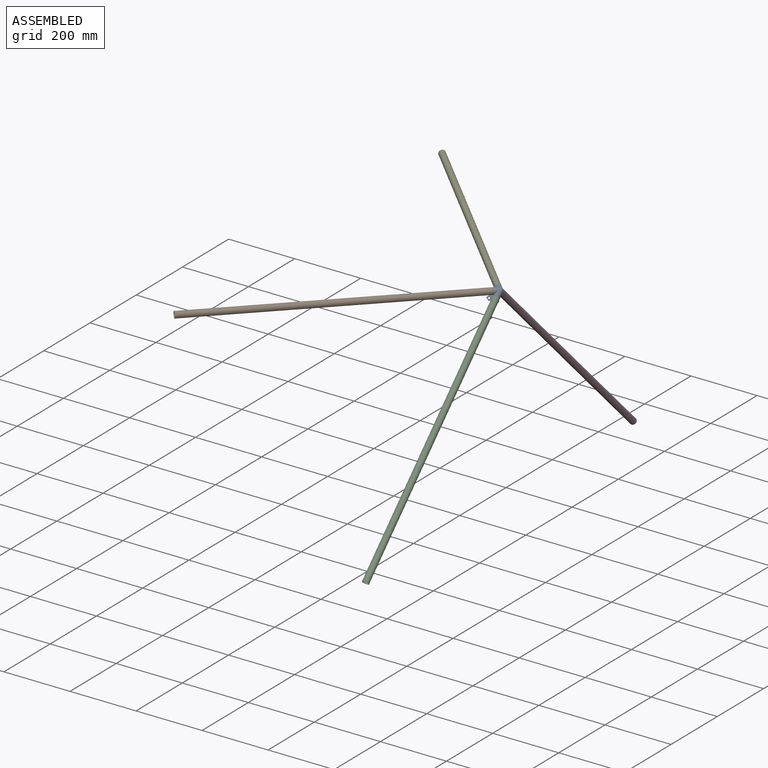
[diagram: assembled view]
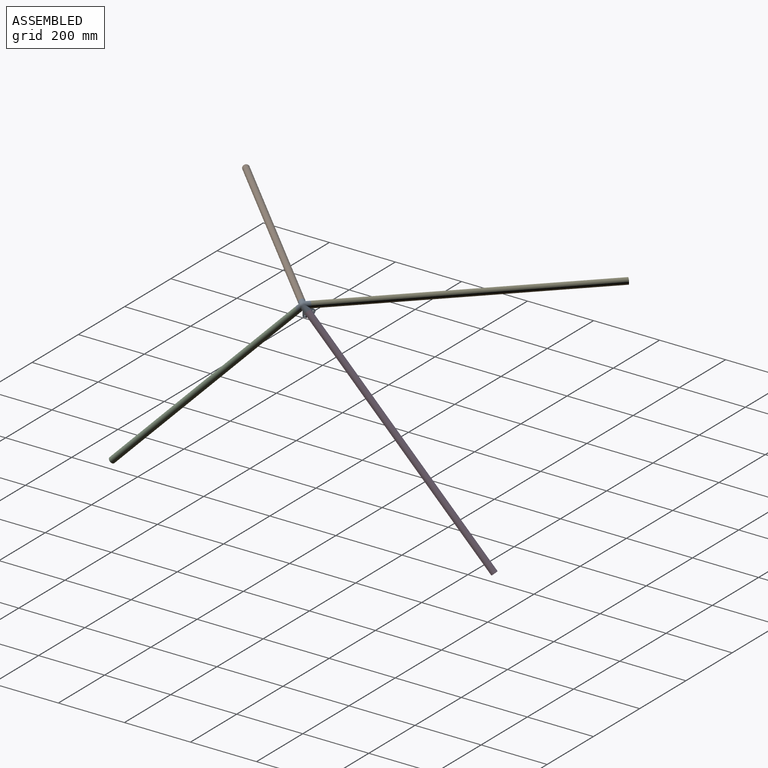
[diagram: assembled view, second angle]
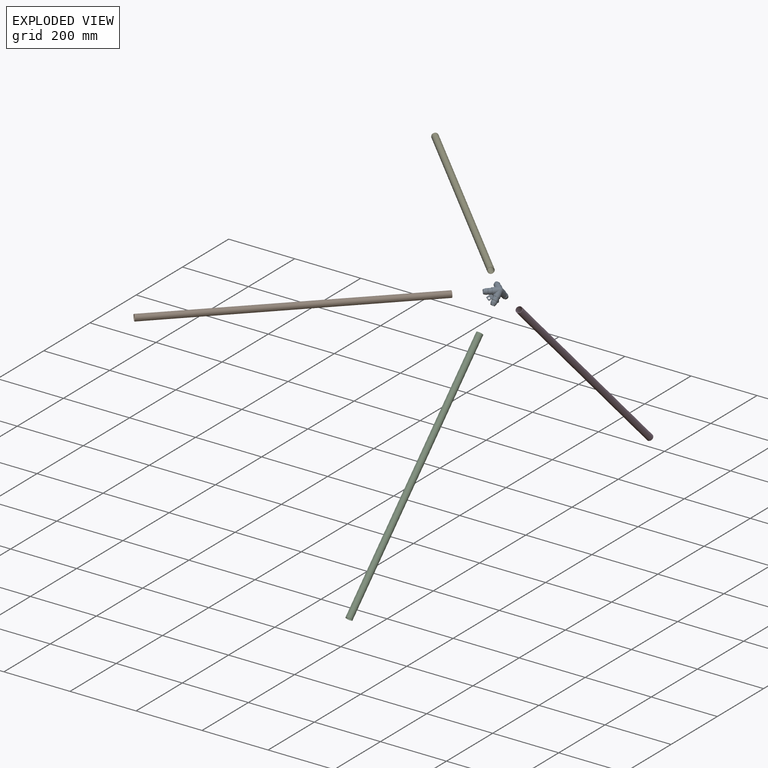
[diagram: exploded view]
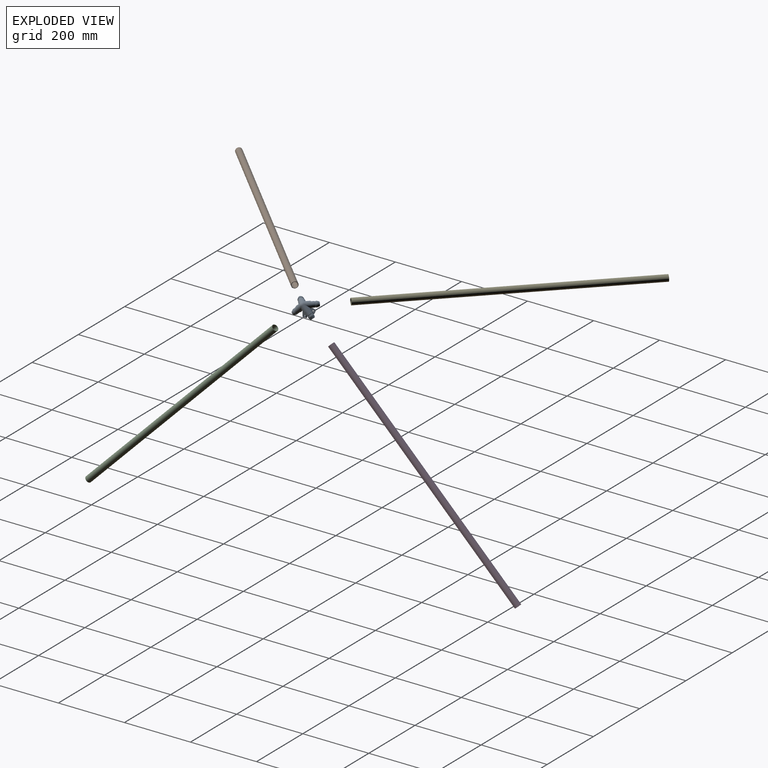
[diagram: exploded view, second angle]
ASSEMBLY  parts=5 mates=4
PART A: 211 faces, bbox 46.3x67.2x46.3 mm
  f0: bspline ~1.73x1.58mm, area 0.7mm2, adj f1,f10,f129,f181
  f1: bspline ~1.74x1.48mm, area 0.7mm2, adj f0,f2,f10,f129
  f2: bspline ~1.51x1.28mm, area 0.4mm2, adj f1,f10,f129,f179
  f3: cylinder r=1mm len=0.9mm, axis (1,0,0), area 0.6mm2, adj f28,f53,f171
  f4: plane 8.76x4.43mm, normal (0,0,1), area 11.4mm2, adj f6,f8,f27,f28,f51,f54,f165,f168
  f5: plane 0.35x0.32mm, normal (0,0,1), area 0mm2, adj f7,f27,f166,f167
  f6: plane 0.33x0.33mm, normal (0.71,-0.71,0), area 0mm2, adj f4,f51,f168
  f7: cylinder r=1mm len=0.9mm, axis (-1,0,0), area 0.6mm2, adj f5,f27,f166
  f8: plane 0.33x0.33mm, normal (0.71,0.71,0), area 0mm2, adj f4,f54,f165
  f9: cylinder r=1mm len=17.73mm, axis (1,0,0), area 26mm2, adj f13,f60,f68,f190,f191
  f10: cylinder r=1mm len=17.73mm, axis (-1,0,0), area 26.1mm2, adj f0,f1,f2,f13,f62,f66,f181,f184
  f11: cylinder r=9.53mm len=26.94mm, axis (0,-0.71,0.71), area 605.3mm2, adj f12,f20,f24,f25,f72,f96,f97,f144
  f12: cylinder r=9.53mm len=26.94mm, axis (0,0.71,0.71), area 605.3mm2, adj f11,f21,f25,f26,f81,f97,f98,f126
  f13: plane 25.3x10mm, normal (0,0,-1), area 197.9mm2, adj f9,f10,f63,f66,f67,f68,f187,f189
  f14: plane 0.62x0.62mm, normal (0,0.71,0.71), area 0.1mm2, adj f17,f23,f111
  f15: plane 25.3x10mm, normal (-1,0,0), area 197.9mm2, adj f94,f95,f100,f103,f104,f105,f185,f188
  f16: cylinder r=1mm len=1.27mm, axis (0,0,1), area 1mm2, adj f17,f59,f115,f161
  f17: plane 10.04x5.08mm, normal (1,0,0), area 13mm2, adj f14,f16,f18,f19,f22,f23,f56,f59
  f18: plane 0.62x0.62mm, normal (0,-0.71,0.71), area 0.1mm2, adj f17,f22,f114
  f19: cylinder r=1mm len=1.27mm, axis (0,0,-1), area 1mm2, adj f17,f56,f112,f152
  f20: plane 18.6x2mm, normal (0,1,0), area 35.7mm2, adj f11,f94,f96,f101,f183
  f21: plane 18.6x2mm, normal (0,-1,0), area 35.7mm2, adj f12,f95,f98,f102,f180
  f22: cylinder r=9.53mm len=19.68mm, axis (0.71,0.71,0), area 207.7mm2, adj f17,f18,f23,f59,f109,f113,f114
  f23: cylinder r=9.53mm len=19.68mm, axis (0.71,-0.71,0), area 207.7mm2, adj f14,f17,f22,f56,f109,f110,f111
  f24: cylinder r=9.53mm len=26.94mm, axis (0.71,-0.71,0), area 604.3mm2, adj f11,f25,f26,f29,f55,f57,f60,f144
  f25: sphere r=9.53mm, area 97.9mm2, adj f11,f12,f24,f26
  f26: cylinder r=9.53mm len=26.94mm, axis (0.71,0.71,0), area 604.3mm2, adj f12,f24,f25,f38,f57,f58,f62,f130
  f27: cylinder r=8.02mm len=20.13mm, axis (0.71,-0.71,0), area 413.6mm2, adj f4,f5,f7,f28,f41,f52,f54,f164
  f28: cylinder r=8.02mm len=20.13mm, axis (0.71,0.71,0), area 413.6mm2, adj f3,f4,f27,f48,f51,f52,f53,f168
  f29: plane 19.05x13.47mm, normal (-0.71,0.71,0), area 72.5mm2, adj f24,f30
  f30: cylinder r=8.22mm len=18.7mm, axis (0.71,-0.71,0), area 516.8mm2, adj f29,f31
  f31: torus R=8.22mm, axis (0.71,-0.71,0), area 149.8mm2, adj f30,f32
  f32: cylinder r=8.22mm len=16.45mm, axis (0.71,-0.71,0), area 206.7mm2, adj f31,f40
  f33: plane 12.45x8.8mm, normal (-0.71,0.71,0), area 54mm2, adj f40,f50
  f34: plane 12.45x8.8mm, normal (-0.71,-0.71,0), area 54mm2, adj f39,f49
  f35: cylinder r=8.22mm len=16.45mm, axis (0.71,0.71,0), area 206.7mm2, adj f36,f39
  f36: torus R=8.22mm, axis (0.71,0.71,0), area 149.8mm2, adj f35,f37
  f37: cylinder r=8.22mm len=18.7mm, axis (0.71,0.71,0), area 516.8mm2, adj f36,f38
  f38: plane 19.05x13.47mm, normal (-0.71,-0.71,0), area 72.5mm2, adj f26,f37
  f39: cone r=8.22mm half-angle=18.4deg, axis (0.71,0.71,0), area 287.1mm2, adj f34,f35
  f40: cone r=8.22mm half-angle=18.4deg, axis (0.71,-0.71,0), area 287.1mm2, adj f32,f33
  f41: plane 16.05x11.35mm, normal (0.71,-0.71,0), area 60.2mm2, adj f27,f42
  f42: cylinder r=6.72mm len=16.94mm, axis (0.71,-0.71,0), area 443.7mm2, adj f41,f43
  f43: torus R=8.22mm, axis (0.71,-0.71,0), area 176.8mm2, adj f42,f44
  f44: cylinder r=6.72mm len=13.45mm, axis (0.71,-0.71,0), area 116.5mm2, adj f43,f50
  f45: cylinder r=6.72mm len=13.45mm, axis (0.71,0.71,0), area 116.5mm2, adj f46,f49
  f46: torus R=8.22mm, axis (0.71,0.71,0), area 176.8mm2, adj f45,f47
  f47: cylinder r=6.72mm len=16.94mm, axis (0.71,0.71,0), area 443.7mm2, adj f46,f48
  f48: plane 16.05x11.35mm, normal (0.71,0.71,0), area 60.2mm2, adj f28,f47
  f49: cone r=6.8mm half-angle=18.4deg, axis (0.71,0.71,0), area 235.1mm2, adj f34,f45
  f50: cone r=6.8mm half-angle=18.4deg, axis (0.71,-0.71,0), area 235.1mm2, adj f33,f44
  f51: cylinder r=9.53mm len=19.68mm, axis (0,0.71,0.71), area 207.6mm2, adj f4,f6,f28,f52,f54,f168,f169
  f52: sphere r=9.53mm, area 83.8mm2, adj f27,f28,f51,f54
  f53: plane 0.35x0.32mm, normal (0,0,1), area 0mm2, adj f3,f28,f170,f171
  f54: cylinder r=9.53mm len=19.68mm, axis (0,-0.71,0.71), area 207.6mm2, adj f4,f8,f27,f51,f52,f164,f165
  f55: cylinder r=1mm len=18.24mm, axis (-1,0,0), area 28.7mm2, adj f24,f57,f60,f71
  f56: cylinder r=8.02mm len=20.13mm, axis (0,-0.71,0.71), area 416.5mm2, adj f17,f19,f23,f59,f84,f109,f110,f112
  f57: plane 23.74x10mm, normal (0,0,1), area 192.7mm2, adj f24,f26,f55,f58,f63,f69,f70,f71
  f58: cylinder r=1mm len=18.24mm, axis (1,0,0), area 28.7mm2, adj f26,f57,f62,f69
  f59: cylinder r=8.02mm len=20.13mm, axis (0,0.71,0.71), area 416.5mm2, adj f16,f17,f22,f56,f91,f109,f113,f115
  f60: plane 18.5x2mm, normal (0,1,0), area 35.4mm2, adj f9,f24,f55,f64,f192,f193
  f61: plane 9x2mm, normal (-1,0,0), area 18mm2, adj f64,f65,f67,f70
  f62: plane 18.5x2mm, normal (0,-1,0), area 35.4mm2, adj f10,f26,f58,f65,f178,f179
  f63: cylinder r=2.5mm len=5mm, axis (0,0,1), area 62.8mm2, adj f13,f57
  f64: cylinder r=1.5mm len=2mm, axis (0,0,-1), area 4.7mm2, adj f60,f61,f68,f71
  f65: cylinder r=1.5mm len=2mm, axis (0,0,1), area 4.7mm2, adj f61,f62,f66,f69
  f66: torus R=0.5mm, axis (0,0,1), area 2.8mm2, adj f10,f13,f65,f67
  f67: cylinder r=1mm len=9mm, axis (0,1,0), area 14.1mm2, adj f13,f61,f66,f68
  f68: torus R=0.5mm, axis (0,0,1), area 2.8mm2, adj f9,f13,f64,f67
  f69: torus R=0.5mm, axis (0,0,1), area 2.8mm2, adj f57,f58,f65,f70
  f70: cylinder r=1mm len=9mm, axis (0,-1,0), area 14.1mm2, adj f57,f61,f69,f71
  f71: torus R=0.5mm, axis (0,0,1), area 2.8mm2, adj f55,f57,f64,f70
  f72: plane 19.05x13.47mm, normal (0,0.71,-0.71), area 72.5mm2, adj f11,f73
  f73: cylinder r=8.22mm len=18.7mm, axis (0,-0.71,0.71), area 516.8mm2, adj f72,f74
  f74: torus R=8.22mm, axis (0,-0.71,0.71), area 149.8mm2, adj f73,f75
  f75: cylinder r=8.22mm len=16.45mm, axis (0,-0.71,0.71), area 206.7mm2, adj f74,f83
  f76: plane 12.45x8.8mm, normal (0,0.71,-0.71), area 54mm2, adj f83,f93
  f77: plane 12.45x8.8mm, normal (0,-0.71,-0.71), area 54mm2, adj f82,f92
  f78: cylinder r=8.22mm len=16.45mm, axis (0,0.71,0.71), area 206.7mm2, adj f79,f82
  f79: torus R=8.22mm, axis (0,0.71,0.71), area 149.8mm2, adj f78,f80
  f80: cylinder r=8.22mm len=18.7mm, axis (0,0.71,0.71), area 516.8mm2, adj f79,f81
  f81: plane 19.05x13.47mm, normal (0,-0.71,-0.71), area 72.5mm2, adj f12,f80
  f82: cone r=8.22mm half-angle=18.4deg, axis (0,0.71,0.71), area 287.1mm2, adj f77,f78
  f83: cone r=8.22mm half-angle=18.4deg, axis (0,-0.71,0.71), area 287.1mm2, adj f75,f76
  f84: plane 16.05x11.35mm, normal (0,-0.71,0.71), area 60.2mm2, adj f56,f85
  f85: cylinder r=6.72mm len=16.94mm, axis (0,-0.71,0.71), area 443.7mm2, adj f84,f86
  f86: torus R=8.22mm, axis (0,-0.71,0.71), area 176.8mm2, adj f85,f87
  f87: cylinder r=6.72mm len=13.45mm, axis (0,-0.71,0.71), area 116.5mm2, adj f86,f93
  f88: cylinder r=6.72mm len=13.45mm, axis (0,0.71,0.71), area 116.5mm2, adj f89,f92
  f89: torus R=8.22mm, axis (0,0.71,0.71), area 176.8mm2, adj f88,f90
  f90: cylinder r=6.72mm len=16.94mm, axis (0,0.71,0.71), area 443.7mm2, adj f89,f91
  f91: plane 16.05x11.35mm, normal (0,0.71,0.71), area 60.2mm2, adj f59,f90
  f92: cone r=6.8mm half-angle=18.4deg, axis (0,0.71,0.71), area 235.1mm2, adj f77,f88
  f93: cone r=6.8mm half-angle=18.4deg, axis (0,-0.71,0.71), area 235.1mm2, adj f76,f87
  f94: cylinder r=1mm len=17.73mm, axis (0,0,1), area 26.2mm2, adj f15,f20,f105,f186
  f95: cylinder r=1mm len=17.73mm, axis (0,0,-1), area 26.2mm2, adj f15,f21,f103,f182
  f96: cylinder r=1mm len=18.24mm, axis (0,0,-1), area 28.7mm2, adj f11,f20,f97,f108
  f97: plane 23.74x10mm, normal (1,0,0), area 192.7mm2, adj f11,f12,f96,f98,f100,f106,f107,f108
  f98: cylinder r=1mm len=18.24mm, axis (0,0,1), area 28.7mm2, adj f12,f21,f97,f106
  f99: plane 9x2mm, normal (0,0,-1), area 18mm2, adj f101,f102,f104,f107
  f100: cylinder r=2.5mm len=5mm, axis (1,0,0), area 62.8mm2, adj f15,f97
  f101: cylinder r=1.5mm len=2mm, axis (-1,0,0), area 4.7mm2, adj f20,f99,f105,f108
  f102: cylinder r=1.5mm len=2mm, axis (1,0,0), area 4.7mm2, adj f21,f99,f103,f106
  f103: torus R=0.5mm, axis (1,0,0), area 2.8mm2, adj f15,f95,f102,f104
  f104: cylinder r=1mm len=9mm, axis (0,1,0), area 14.1mm2, adj f15,f99,f103,f105
  f105: torus R=0.5mm, axis (1,0,0), area 2.8mm2, adj f15,f94,f101,f104
  f106: torus R=0.5mm, axis (1,0,0), area 2.8mm2, adj f97,f98,f102,f107
  f107: cylinder r=1mm len=9mm, axis (0,-1,0), area 14.1mm2, adj f97,f99,f106,f108
  f108: torus R=0.5mm, axis (1,0,0), area 2.8mm2, adj f96,f97,f101,f107
  f109: sphere r=9.53mm, area 83.8mm2, adj f22,f23,f56,f59
  f110: plane 4.66x4.46mm, normal (0.5,0.71,0.5), area 8.6mm2, adj f23,f56,f111,f112,f155,f157
  f111: plane 0.62x0.62mm, normal (0.85,-0.5,-0.15), area 0.1mm2, adj f14,f23,f110
  f112: cylinder r=1mm len=2.26mm, axis (-0.5,0.71,-0.5), area 2.2mm2, adj f19,f56,f110,f155
  f113: plane 4.66x4.46mm, normal (0.5,-0.71,0.5), area 8.6mm2, adj f22,f59,f114,f115,f158,f160
  f114: plane 0.62x0.62mm, normal (0.85,0.5,-0.15), area 0.1mm2, adj f18,f22,f113
  f115: cylinder r=1mm len=2.26mm, axis (-0.5,-0.71,-0.5), area 2.2mm2, adj f16,f59,f113,f160
  f116: plane 7.36x7.36mm, normal (-0.5,-0.71,-0.5), area 18mm2, adj f117,f120,f123,f125
  f117: cylinder r=1mm len=7.36mm, axis (-0.71,0,0.71), area 14.1mm2, adj f116,f118,f119,f132
  f118: torus R=0.5mm, axis (0.5,-0.71,0.5), area 2.8mm2, adj f117,f120,f132,f133
  f119: torus R=0.5mm, axis (0.5,-0.71,0.5), area 2.8mm2, adj f117,f125,f131,f132
  f120: cylinder r=1.5mm len=2.81mm, axis (0.5,-0.71,0.5), area 4.7mm2, adj f116,f118,f122,f130
  f121: cylinder r=2.5mm len=6.36mm, axis (0.5,-0.71,0.5), area 62.8mm2, adj f128,f132
  f122: torus R=0.5mm, axis (0.5,-0.71,0.5), area 2.8mm2, adj f120,f123,f128,f129
  f123: cylinder r=1mm len=6.57mm, axis (0.71,0,-0.71), area 14.1mm2, adj f116,f122,f124,f128
  f124: torus R=0.5mm, axis (0.5,-0.71,0.5), area 2.8mm2, adj f123,f125,f127,f128
  f125: cylinder r=1.5mm len=2.81mm, axis (-0.5,0.71,-0.5), area 4.7mm2, adj f116,f119,f124,f126
  f126: plane 13.38x9.88mm, normal (0.71,0,-0.71), area 35.1mm2, adj f12,f125,f127,f131,f180
  f127: cylinder r=1mm len=13.24mm, axis (0.5,0.71,0.5), area 26.2mm2, adj f124,f126,f128,f182
  f128: plane 17.82x16.02mm, normal (-0.5,0.71,-0.5), area 197mm2, adj f121,f122,f123,f124,f127,f129,f184,f185
  f129: cylinder r=1mm len=13.12mm, axis (-0.5,-0.71,-0.5), area 26.1mm2, adj f0,f1,f2,f122,f128,f130,f179,f181
  f130: plane 13.38x9.86mm, normal (-0.71,0,0.71), area 35.1mm2, adj f26,f120,f129,f133,f178
  f131: cylinder r=1mm len=12.45mm, axis (-0.5,-0.71,-0.5), area 25.1mm2, adj f12,f119,f126,f132
  f132: plane 15.72x15.19mm, normal (0.5,-0.71,0.5), area 166.7mm2, adj f12,f26,f117,f118,f119,f121,f131,f133
  f133: cylinder r=1mm len=12.37mm, axis (0.5,0.71,0.5), area 24.9mm2, adj f26,f118,f130,f132
  f134: torus R=0.5mm, axis (0.5,0.71,0.5), area 2.8mm2, adj f135,f143,f144,f149
  f135: cylinder r=1mm len=7.36mm, axis (-0.71,0,0.71), area 14.1mm2, adj f134,f136,f144,f146
  f136: torus R=0.5mm, axis (0.5,0.71,0.5), area 2.8mm2, adj f135,f142,f144,f151
  f137: cylinder r=1mm len=13.24mm, axis (0.5,-0.71,0.5), area 26.2mm2, adj f138,f147,f148,f186
  f138: torus R=0.5mm, axis (0.5,0.71,0.5), area 2.8mm2, adj f137,f139,f143,f147
  f139: cylinder r=1mm len=6.57mm, axis (0.71,0,-0.71), area 14.1mm2, adj f138,f140,f146,f147
  f140: torus R=0.5mm, axis (0.5,0.71,0.5), area 2.8mm2, adj f139,f141,f142,f147
  f141: cylinder r=1mm len=13.12mm, axis (-0.5,0.71,-0.5), area 26mm2, adj f140,f147,f150,f191,f192
  f142: cylinder r=1.5mm len=2.81mm, axis (0.5,0.71,0.5), area 4.7mm2, adj f136,f140,f146,f150
  f143: cylinder r=1.5mm len=2.81mm, axis (-0.5,-0.71,-0.5), area 4.7mm2, adj f134,f138,f146,f148
  f144: plane 15.72x15.19mm, normal (0.5,0.71,0.5), area 166.7mm2, adj f11,f24,f134,f135,f136,f145,f149,f151
  f145: cylinder r=2.5mm len=6.36mm, axis (0.5,0.71,0.5), area 62.8mm2, adj f144,f147
  f146: plane 7.36x7.36mm, normal (-0.5,0.71,-0.5), area 18mm2, adj f135,f139,f142,f143
  f147: plane 17.82x16.02mm, normal (-0.5,-0.71,-0.5), area 197mm2, adj f137,f138,f139,f140,f141,f145,f188,f189
  f148: plane 13.38x9.88mm, normal (0.71,0,-0.71), area 35.1mm2, adj f11,f137,f143,f149,f183
  f149: cylinder r=1mm len=12.45mm, axis (-0.5,0.71,-0.5), area 25.1mm2, adj f11,f134,f144,f148
  f150: plane 13.38x9.86mm, normal (-0.71,0,0.71), area 35.1mm2, adj f24,f141,f142,f151,f193
  f151: cylinder r=1mm len=12.37mm, axis (0.5,-0.71,0.5), area 24.9mm2, adj f24,f136,f144,f150
  f152: cylinder r=1mm len=1.99mm, axis (-0.5,0.71,-0.5), area 0.9mm2, adj f17,f19,f153,f154,f155
  f153: plane 1.97x1.39mm, normal (0.5,0.71,0.5), area 0.4mm2, adj f152,f154,f156
  f154: plane 3.39x1.28mm, normal (0.85,-0.5,-0.15), area 1.4mm2, adj f17,f152,f153
  f155: cylinder r=1mm len=1.58mm, axis (0,0,-1), area 0.9mm2, adj f110,f112,f152,f156,f157
  f156: plane 1.97x1.39mm, normal (1,0,0), area 0.4mm2, adj f153,f155,f157
  f157: plane 2.39x2.39mm, normal (0,0.71,0.71), area 1.4mm2, adj f110,f155,f156
  f158: plane 2.39x2.39mm, normal (0,-0.71,0.71), area 1.4mm2, adj f113,f159,f160
  f159: plane 1.97x1.39mm, normal (1,0,0), area 0.4mm2, adj f158,f160,f162
  f160: cylinder r=1mm len=1.58mm, axis (0,0,1), area 0.9mm2, adj f113,f115,f158,f159,f161
  f161: cylinder r=1mm len=1.99mm, axis (-0.5,-0.71,-0.5), area 0.9mm2, adj f16,f17,f160,f162,f163
  f162: plane 1.97x1.39mm, normal (0.5,-0.71,0.5), area 0.4mm2, adj f159,f161,f163
  f163: plane 3.39x1.28mm, normal (0.85,0.5,-0.15), area 1.4mm2, adj f17,f161,f162
  f164: plane 4.56x4.34mm, normal (0.5,0.71,0.5), area 9.7mm2, adj f27,f54,f165,f166,f175,f176,f177
  f165: plane 4.11x1.88mm, normal (-0.15,-0.5,0.85), area 2.1mm2, adj f4,f8,f27,f54,f164,f166,f167
  f166: cylinder r=1mm len=3.69mm, axis (0.5,-0.71,0.5), area 3.9mm2, adj f5,f7,f27,f164,f165,f167,f176
  f167: plane 0.16x0.09mm, normal (-0.71,0,0.71), area 0mm2, adj f5,f27,f165,f166
  f168: plane 4.11x1.88mm, normal (-0.15,0.5,0.85), area 2.1mm2, adj f4,f6,f28,f51,f169,f170,f171
  f169: plane 4.56x4.34mm, normal (0.5,-0.71,0.5), area 9.7mm2, adj f28,f51,f168,f171,f172,f173,f174
  f170: plane 0.16x0.09mm, normal (-0.71,0,0.71), area 0mm2, adj f28,f53,f168,f171
  f171: cylinder r=1mm len=3.69mm, axis (0.5,0.71,0.5), area 3.9mm2, adj f3,f28,f53,f168,f169,f170,f174
  f172: plane 2.39x2.39mm, normal (0.71,-0.71,0), area 1.4mm2, adj f169,f173,f174
  f173: plane 1.97x1.39mm, normal (0,0,1), area 0.4mm2, adj f169,f172,f174
  f174: cylinder r=1mm len=1.32mm, axis (1,0,0), area 0.8mm2, adj f169,f171,f172,f173
  f175: plane 2.39x2.39mm, normal (0.71,0.71,0), area 1.4mm2, adj f164,f176,f177
  f176: cylinder r=1mm len=1.32mm, axis (-1,0,0), area 0.8mm2, adj f164,f166,f175,f177
  f177: plane 1.97x1.39mm, normal (0,0,1), area 0.4mm2, adj f164,f175,f176
  f178: cylinder r=1mm len=2.4mm, axis (0.71,0,0.71), area 3.4mm2, adj f26,f62,f130,f179
  f179: bspline ~1.03x0.8mm, area 0.2mm2, adj f2,f62,f129,f178
  f180: cylinder r=1mm len=2.41mm, axis (-0.71,0,-0.71), area 3.5mm2, adj f12,f21,f126,f182
  f181: bspline ~2.12x1.85mm, area 1.4mm2, adj f0,f10,f129,f184
  f182: bspline ~2.18x2.09mm, area 3.3mm2, adj f95,f127,f180,f185
  f183: cylinder r=1mm len=2.41mm, axis (0.71,0,0.71), area 3.5mm2, adj f11,f20,f148,f186
  f184: bspline ~0.83x0.68mm, area 0.2mm2, adj f10,f128,f181,f187
  f185: cylinder r=1mm len=8.1mm, axis (0,0.58,0.82), area 9.4mm2, adj f15,f128,f182,f187,f188
  f186: bspline ~2.18x2.09mm, area 3.3mm2, adj f94,f137,f183,f188
  f187: cylinder r=1mm len=8.1mm, axis (-0.82,-0.58,0), area 9.4mm2, adj f13,f128,f184,f185,f189
  f188: cylinder r=1mm len=8.1mm, axis (0,0.58,-0.82), area 9.4mm2, adj f15,f147,f185,f186,f189
  f189: cylinder r=1mm len=8.1mm, axis (0.82,-0.58,0), area 9.4mm2, adj f13,f147,f187,f188,f190
  f190: bspline ~0.83x0.68mm, area 0.2mm2, adj f9,f147,f189,f191
  f191: bspline ~2.14x2.02mm, area 3.1mm2, adj f9,f141,f190,f192
  f192: bspline ~1.03x0.8mm, area 0.2mm2, adj f60,f141,f191,f193
  f193: cylinder r=1mm len=2.4mm, axis (-0.71,0,-0.71), area 3.4mm2, adj f24,f60,f150,f192
  f194: plane 1.55x1.24mm, normal (0.71,0.71,0), area 1.6mm2, adj f195,f197,f200,f202,f206,f207
  f195: plane 1.55x1.24mm, normal (0.71,-0.71,0), area 1.6mm2, adj f194,f196,f200,f201,f209,f210
  f196: plane 1.59x1.27mm, normal (0,-0.71,0.71), area 1.6mm2, adj f195,f197,f198,f203,f209
  f197: plane 1.59x1.27mm, normal (0,0.71,0.71), area 1.6mm2, adj f194,f196,f199,f203,f206
  f198: cylinder r=8.02mm len=18.4mm, axis (0.71,0.71,0), area 200mm2, adj f196,f199,f201,f203,f204,f208,f209
  f199: cylinder r=8.02mm len=18.4mm, axis (0.71,-0.71,0), area 200mm2, adj f197,f198,f202,f203,f204,f205,f206
  f200: plane 2.31x1.16mm, normal (0,0,1), area 0.9mm2, adj f194,f195,f201,f202
  f201: cylinder r=8.02mm len=18.27mm, axis (0,0.71,0.71), area 199.8mm2, adj f195,f198,f200,f202,f204,f208,f210
  f202: cylinder r=8.02mm len=18.27mm, axis (0,-0.71,0.71), area 199.8mm2, adj f194,f199,f200,f201,f204,f205,f207
  f203: plane 2.31x1.16mm, normal (1,0,0), area 0.9mm2, adj f196,f197,f198,f199
  f204: sphere r=8.02mm, area 337.2mm2, adj f198,f199,f201,f202
  f205: plane 2.66x2.45mm, normal (0.5,0.71,0.5), area 6.2mm2, adj f199,f202,f206,f207
  f206: plane 2.21x2.07mm, normal (0.85,-0.5,-0.15), area 2.2mm2, adj f194,f197,f199,f205,f207
  f207: plane 2.16x1.98mm, normal (-0.15,-0.5,0.85), area 2mm2, adj f194,f202,f205,f206
  f208: plane 2.66x2.45mm, normal (0.5,-0.71,0.5), area 6.2mm2, adj f198,f201,f209,f210
  f209: plane 2.21x2.07mm, normal (0.85,0.5,-0.15), area 2.2mm2, adj f195,f196,f198,f208,f210
  f210: plane 2.16x1.98mm, normal (-0.15,0.5,0.85), area 2mm2, adj f195,f201,f208,f209
PART B: 4 faces, bbox 19.1x19.1x800 mm
  f0: plane 19.05x19.05mm, normal (0,0,1), area 45.9mm2, adj f1,f3
  f1: cylinder r=8.72mm len=800mm, axis (0,0,1), area 43856.6mm2, adj f0,f2
  f2: plane 19.05x19.05mm, normal (0,0,-1), area 45.9mm2, adj f1,f3
  f3: cylinder r=9.53mm len=800mm, axis (0,0,1), area 47877.9mm2, adj f0,f2
PART C: same geometry as B
PART D: same geometry as B
PART E: same geometry as B
PLACE A rot(axis=(0.68,0.09,-0.73),0deg) t=(20.87,55.97,58.9)mm
PLACE B rot(axis=(0.36,-0.86,0.36),98.4deg) t=(-36.52,-1.42,99.5)mm
PLACE C rot(axis=(1,0,0),135deg) t=(61.48,-1.42,1.51)mm
PLACE D rot(axis=(-1,0,0),135deg) t=(61.48,113.36,1.51)mm
PLACE E rot(axis=(-0.36,-0.86,-0.36),98.4deg) t=(-36.52,113.36,99.5)mm
MATE fastened B.f1 <-> A.f36  axis (-0.71,-0.71,0) through (7.4,42.5,58.9)mm
MATE fastened E.f1 <-> A.f50  axis (-0.71,0.71,0) through (7.4,69.44,58.9)mm
MATE fastened D.f1 <-> A.f93  axis (0,0.71,-0.71) through (20.87,69.44,45.43)mm
MATE fastened C.f1 <-> A.f79  axis (0,-0.71,-0.71) through (20.87,42.5,45.43)mm
